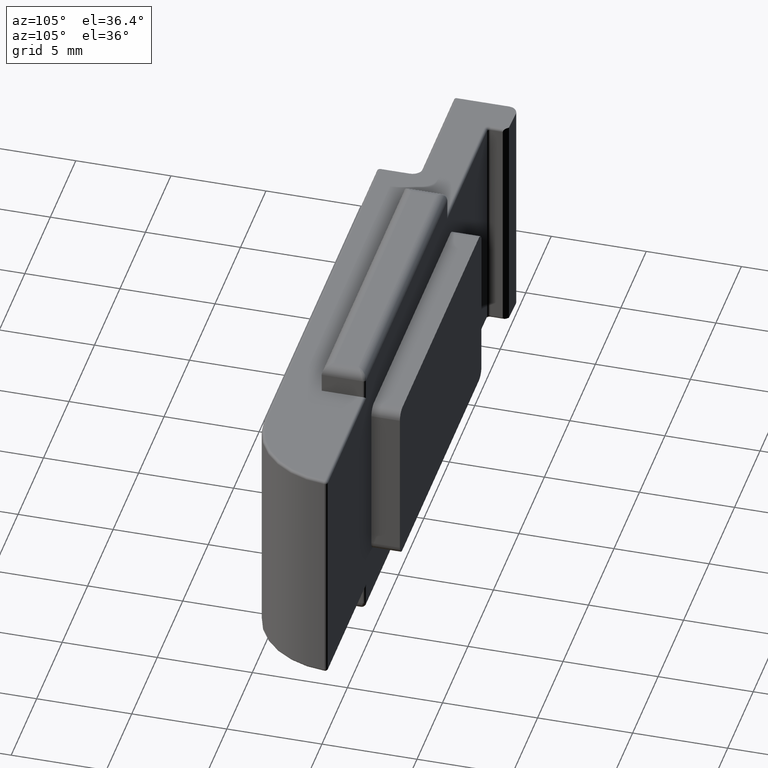
[diagram: clean part render]
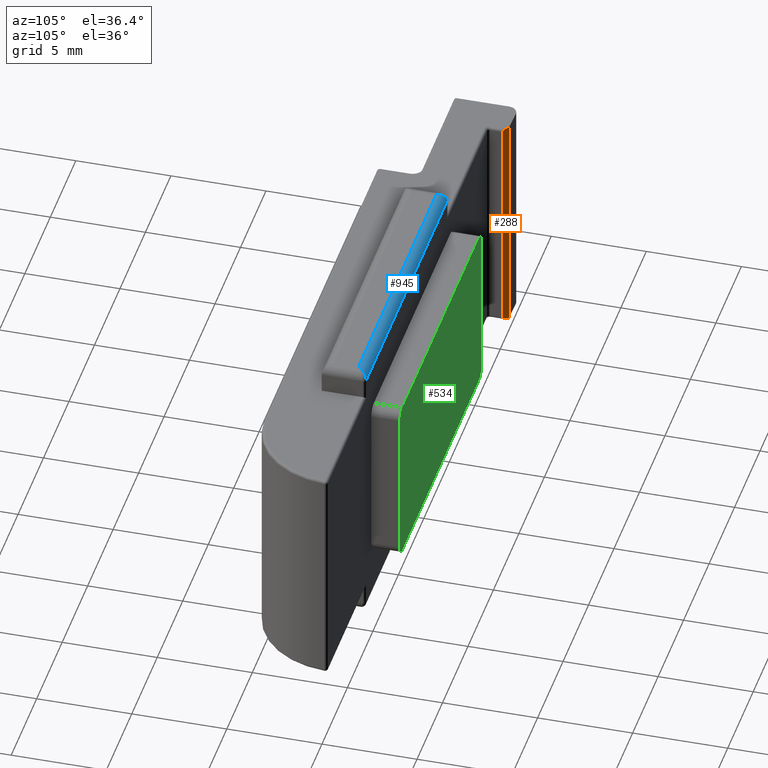
[diagram: same view with three faces highlighted in distinct colors, each labeled with its STEP entity id]
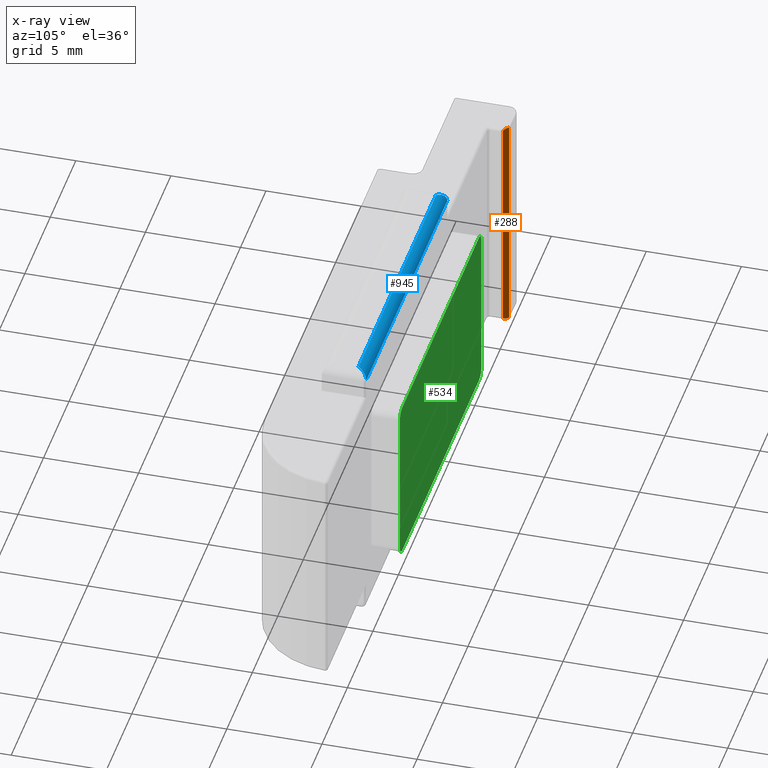
[diagram: x-ray of the same camera — body ghosted, the three highlighted faces saturated]
A machine part, auxiliary view with three faces highlighted in distinct colors.
The next image is the same camera in x-ray (body ghosted, the three faces saturated) — at least one of them is partly hidden behind the body in this view.
Their STEP definitions:

[orange] entity #288 — the highlighted planar face has unit normal (-0.7071, -0.7071, 0).
#36 = CARTESIAN_POINT ( 'NONE',  ( -5.016410256410281043, 0.4564102564102584525, 12.00000000000003197 ) ) ;
#62 = CARTESIAN_POINT ( 'NONE',  ( -4.910000000000018794, 0.3499999999999892086, 12.00000000000003197 ) ) ;
#72 = LINE ( 'NONE', #36, #2153 ) ;
#129 = EDGE_CURVE ( 'NONE', #1792, #1988, #307, .T. ) ;
#144 = ORIENTED_EDGE ( 'NONE', *, *, #166, .F. ) ;
#166 = EDGE_CURVE ( 'NONE', #1955, #985, #72, .T. ) ;
#240 = CARTESIAN_POINT ( 'NONE',  ( -4.822132034355981922, 0.2621320343559522259, 12.00000000000002842 ) ) ;
#288 = ADVANCED_FACE ( 'NONE', ( #433 ), #1279, .F. ) ;
#303 = CARTESIAN_POINT ( 'NONE',  ( -4.760000000000021103, 0.1999999999999918510, 11.85000000000002629 ) ) ;
#307 = LINE ( 'NONE', #1700, #559 ) ;
#325 = EDGE_CURVE ( 'NONE', #1988, #1109, #1623, .T. ) ;
#331 = VECTOR ( 'NONE', #391, 1000.000000000000000 ) ;
#391 = DIRECTION ( 'NONE',  ( 0.000000000000000000, 6.162975822039132834E-33, 1.000000000000000000 ) ) ;
#433 = FACE_OUTER_BOUND ( 'NONE', #760, .T. ) ;
#449 = DIRECTION ( 'NONE',  ( 0.000000000000000000, -6.162975822039132834E-33, -1.000000000000000000 ) ) ;
#511 = LINE ( 'NONE', #1200, #331 ) ;
#545 = CARTESIAN_POINT ( 'NONE',  ( -4.759999999999997122, 0.1999999999999918510, 0.1500000000000042966 ) ) ;
#559 = VECTOR ( 'NONE', #688, 1000.000000000000114 ) ;
#568 = DIRECTION ( 'NONE',  ( 0.000000000000000000, -6.162975822039132834E-33, -1.000000000000000000 ) ) ;
#600 = CARTESIAN_POINT ( 'NONE',  ( -4.760000000000018439, 0.1999999999999872158, 11.93786796564405961 ) ) ;
#634 = ORIENTED_EDGE ( 'NONE', *, *, #1972, .F. ) ;
#636 = ORIENTED_EDGE ( 'NONE', *, *, #129, .F. ) ;
#687 = CARTESIAN_POINT ( 'NONE',  ( -5.016410256410281043, 0.4564102564102584525, 12.00000000000003197 ) ) ;
#688 = DIRECTION ( 'NONE',  ( 0.7071067811865435759, -0.7071067811865514585, -0.000000000000000000 ) ) ;
#703 = ORIENTED_EDGE ( 'NONE', *, *, #325, .F. ) ;
#760 = EDGE_LOOP ( 'NONE', ( #634, #2063, #703, #636, #1074, #144 ) ) ;
#764 = CARTESIAN_POINT ( 'NONE',  ( -4.760000000000021103, 0.1999999999999918510, 11.85000000000002629 ) ) ;
#785 = CARTESIAN_POINT ( 'NONE',  ( -4.822132034355957941, 0.2621320343559523369, 3.914091791828919714E-15 ) ) ;
#884 = VERTEX_POINT ( 'NONE', #303 ) ;
#891 = CARTESIAN_POINT ( 'NONE',  ( -5.016410256410259727, 0.4564102564102584525, 0.000000000000000000 ) ) ;
#924 = CARTESIAN_POINT ( 'NONE',  ( -4.910000000000018794, 0.3499999999999892086, 12.00000000000003197 ) ) ;
#966 = CARTESIAN_POINT ( 'NONE',  ( -4.909999999999993925, 0.3499999999999892086, 0.000000000000000000 ) ) ;
#981 = CARTESIAN_POINT ( 'NONE',  ( -4.759999999999994458, 0.1999999999999872158, 0.06213203435596833385 ) ) ;
#985 = VERTEX_POINT ( 'NONE', #687 ) ;
#1052 = VECTOR ( 'NONE', #568, 1000.000000000000000 ) ;
#1073 = DIRECTION ( 'NONE',  ( -0.7071067811865435759, 0.7071067811865514585, -0.000000000000000000 ) ) ;
#1074 = ORIENTED_EDGE ( 'NONE', *, *, #2006, .F. ) ;
#1109 = VERTEX_POINT ( 'NONE', #545 ) ;
#1129 = CARTESIAN_POINT ( 'NONE',  ( -4.759999999999997122, 0.1999999999999918510, 0.1500000000000042966 ) ) ;
#1200 = CARTESIAN_POINT ( 'NONE',  ( -4.760000000000021103, 0.1999999999999918510, 12.00000000000003197 ) ) ;
#1279 = PLANE ( 'NONE',  #1957 ) ;
#1326 =( BOUNDED_CURVE ( )  B_SPLINE_CURVE ( 3, ( #764, #600, #240, #924 ),
 .UNSPECIFIED., .F., .T. ) 
 B_SPLINE_CURVE_WITH_KNOTS ( ( 4, 4 ),
 ( 3.141592653589793116, 4.712388980384689674 ),
 .UNSPECIFIED. ) 
 CURVE ( )  GEOMETRIC_REPRESENTATION_ITEM ( )  RATIONAL_B_SPLINE_CURVE ( ( 1.000000000000000000, 0.8047378541243649375, 0.8047378541243649375, 1.000000000000000000 ) ) 
 REPRESENTATION_ITEM ( '' )  );
#1451 = DIRECTION ( 'NONE',  ( -0.7071067811865532349, -0.7071067811865417996, 4.357881996052572420E-33 ) ) ;
#1514 = LINE ( 'NONE', #1608, #1052 ) ;
#1608 = CARTESIAN_POINT ( 'NONE',  ( -5.016410256410281043, 0.4564102564102584525, 12.00000000000003197 ) ) ;
#1623 =( BOUNDED_CURVE ( )  B_SPLINE_CURVE ( 3, ( #966, #785, #981, #1129 ),
 .UNSPECIFIED., .F., .T. ) 
 B_SPLINE_CURVE_WITH_KNOTS ( ( 4, 4 ),
 ( 4.712388980384689674, 6.283185307179586232 ),
 .UNSPECIFIED. ) 
 CURVE ( )  GEOMETRIC_REPRESENTATION_ITEM ( )  RATIONAL_B_SPLINE_CURVE ( ( 1.000000000000000000, 0.8047378541243649375, 0.8047378541243649375, 1.000000000000000000 ) ) 
 REPRESENTATION_ITEM ( '' )  );
#1695 = EDGE_CURVE ( 'NONE', #1109, #884, #511, .T. ) ;
#1700 = CARTESIAN_POINT ( 'NONE',  ( -2.280000000000038884, -2.280000000000004245, 0.000000000000000000 ) ) ;
#1791 = CARTESIAN_POINT ( 'NONE',  ( -5.016410256410281043, 0.4564102564102584525, 12.00000000000003197 ) ) ;
#1792 = VERTEX_POINT ( 'NONE', #891 ) ;
#1939 = CARTESIAN_POINT ( 'NONE',  ( -4.909999999999993925, 0.3499999999999892086, 0.000000000000000000 ) ) ;
#1955 = VERTEX_POINT ( 'NONE', #62 ) ;
#1957 = AXIS2_PLACEMENT_3D ( 'NONE', #1791, #1451, #449 ) ;
#1972 = EDGE_CURVE ( 'NONE', #884, #1955, #1326, .T. ) ;
#1988 = VERTEX_POINT ( 'NONE', #1939 ) ;
#2006 = EDGE_CURVE ( 'NONE', #985, #1792, #1514, .T. ) ;
#2063 = ORIENTED_EDGE ( 'NONE', *, *, #1695, .F. ) ;
#2153 = VECTOR ( 'NONE', #1073, 1000.000000000000114 ) ;

[blue] entity #945 — the highlighted cylindrical surface (edge-blend (fillet) strip) has radius 0.5 mm, axis along (1, -0, 0).
#63 = CARTESIAN_POINT ( 'NONE',  ( 18.70000000000003126, -1.099999999999996758, 13.50000000000001243 ) ) ;
#79 = EDGE_LOOP ( 'NONE', ( #1740, #1338, #854, #934 ) ) ;
#111 = CARTESIAN_POINT ( 'NONE',  ( 18.90502525316944826, -0.8071067811865442199, 13.50000000000001243 ) ) ;
#248 = LINE ( 'NONE', #820, #333 ) ;
#277 = LINE ( 'NONE', #373, #1060 ) ;
#314 = VERTEX_POINT ( 'NONE', #63 ) ;
#333 = VECTOR ( 'NONE', #1518, 1000.000000000000000 ) ;
#373 = CARTESIAN_POINT ( 'NONE',  ( 19.20000000000003126, -0.5999999999999963141, 13.00000000000001066 ) ) ;
#474 = EDGE_CURVE ( 'NONE', #314, #1281, #2126, .T. ) ;
#519 = DIRECTION ( 'NONE',  ( 1.000000000000000000, -3.446287897283827838E-18, 0.000000000000000000 ) ) ;
#639 = CARTESIAN_POINT ( 'NONE',  ( 19.05000000000003268, -0.5999999999999967581, 13.29289321881346453 ) ) ;
#800 = VERTEX_POINT ( 'NONE', #1120 ) ;
#817 = CYLINDRICAL_SURFACE ( 'NONE', #1355, 0.5000000000000000000 ) ;
#820 = CARTESIAN_POINT ( 'NONE',  ( 3.000000000000004441, -1.100000000000003642, 13.50000000000003197 ) ) ;
#854 = ORIENTED_EDGE ( 'NONE', *, *, #1137, .F. ) ;
#934 = ORIENTED_EDGE ( 'NONE', *, *, #1584, .T. ) ;
#945 = ADVANCED_FACE ( 'NONE', ( #2185 ), #817, .T. ) ;
#1060 = VECTOR ( 'NONE', #1215, 1000.000000000000000 ) ;
#1061 = EDGE_CURVE ( 'NONE', #314, #1197, #248, .T. ) ;
#1120 = CARTESIAN_POINT ( 'NONE',  ( 3.150000000000003464, -0.6000000000000033085, 13.00000000000003197 ) ) ;
#1137 = EDGE_CURVE ( 'NONE', #800, #1281, #277, .T. ) ;
#1178 = CARTESIAN_POINT ( 'NONE',  ( 3.500000000000003109, -1.100000000000003642, 13.50000000000003197 ) ) ;
#1184 = CARTESIAN_POINT ( 'NONE',  ( 3.294974746830585222, -0.8071067811865512143, 13.50000000000003375 ) ) ;
#1197 = VERTEX_POINT ( 'NONE', #1938 ) ;
#1215 = DIRECTION ( 'NONE',  ( 1.000000000000000000, -3.446287897283827838E-18, -0.000000000000000000 ) ) ;
#1281 = VERTEX_POINT ( 'NONE', #1574 ) ;
#1338 = ORIENTED_EDGE ( 'NONE', *, *, #474, .T. ) ;
#1355 = AXIS2_PLACEMENT_3D ( 'NONE', #1857, #519, #1533 ) ;
#1518 = DIRECTION ( 'NONE',  ( -1.000000000000000000, 3.446287897283827838E-18, 0.000000000000000000 ) ) ;
#1521 = CARTESIAN_POINT ( 'NONE',  ( 3.150000000000001243, -0.6000000000000037526, 13.29289321881348229 ) ) ;
#1533 = DIRECTION ( 'NONE',  ( 3.446287897286636614E-18, 1.000000000000000000, 0.000000000000000000 ) ) ;
#1543 = CARTESIAN_POINT ( 'NONE',  ( 3.150000000000003464, -0.6000000000000033085, 13.00000000000003197 ) ) ;
#1574 = CARTESIAN_POINT ( 'NONE',  ( 19.05000000000003268, -0.5999999999999963141, 13.00000000000001066 ) ) ;
#1584 = EDGE_CURVE ( 'NONE', #800, #1197, #2190, .T. ) ;
#1641 = CARTESIAN_POINT ( 'NONE',  ( 18.70000000000003126, -1.099999999999996758, 13.50000000000001243 ) ) ;
#1740 = ORIENTED_EDGE ( 'NONE', *, *, #1061, .F. ) ;
#1813 = CARTESIAN_POINT ( 'NONE',  ( 19.05000000000003268, -0.5999999999999963141, 13.00000000000001066 ) ) ;
#1857 = CARTESIAN_POINT ( 'NONE',  ( -2.428612866367529932E-14, -1.100000000000003642, 13.00000000000003197 ) ) ;
#1938 = CARTESIAN_POINT ( 'NONE',  ( 3.500000000000003109, -1.100000000000003642, 13.50000000000003197 ) ) ;
#2126 =( BOUNDED_CURVE ( )  B_SPLINE_CURVE ( 3, ( #1641, #111, #639, #1813 ),
 .UNSPECIFIED., .F., .F. ) 
 B_SPLINE_CURVE_WITH_KNOTS ( ( 4, 4 ),
 ( 4.712388980384689674, 6.283185307179586232 ),
 .UNSPECIFIED. ) 
 CURVE ( )  GEOMETRIC_REPRESENTATION_ITEM ( )  RATIONAL_B_SPLINE_CURVE ( ( 1.000000000000000000, 0.8047378541243649375, 0.8047378541243649375, 1.000000000000000000 ) ) 
 REPRESENTATION_ITEM ( '' )  );
#2185 = FACE_OUTER_BOUND ( 'NONE', #79, .T. ) ;
#2190 =( BOUNDED_CURVE ( )  B_SPLINE_CURVE ( 3, ( #1543, #1521, #1184, #1178 ),
 .UNSPECIFIED., .F., .T. ) 
 B_SPLINE_CURVE_WITH_KNOTS ( ( 4, 4 ),
 ( 3.141592653589793116, 4.712388980384689674 ),
 .UNSPECIFIED. ) 
 CURVE ( )  GEOMETRIC_REPRESENTATION_ITEM ( )  RATIONAL_B_SPLINE_CURVE ( ( 1.000000000000000000, 0.8047378541243649375, 0.8047378541243649375, 1.000000000000000000 ) ) 
 REPRESENTATION_ITEM ( '' )  );

[green] entity #534 — the highlighted planar face has unit normal (0, 1, 0).
#18 = ORIENTED_EDGE ( 'NONE', *, *, #218, .T. ) ;
#97 = CARTESIAN_POINT ( 'NONE',  ( 17.54741302385688684, 0.8999999999999980238, 1.500000000000001332 ) ) ;
#214 = CARTESIAN_POINT ( 'NONE',  ( 2.547413023856807346, 0.8999999999999980238, 10.00000000000000888 ) ) ;
#218 = EDGE_CURVE ( 'NONE', #777, #702, #1322, .T. ) ;
#231 = CARTESIAN_POINT ( 'NONE',  ( -2.081668171172168513E-14, 0.8999999999999980238, 10.50000000000000888 ) ) ;
#236 = DIRECTION ( 'NONE',  ( 0.000000000000000000, -6.162975822039132834E-33, -1.000000000000000000 ) ) ;
#242 = ORIENTED_EDGE ( 'NONE', *, *, #2111, .T. ) ;
#280 = VECTOR ( 'NONE', #551, 1000.000000000000000 ) ;
#294 = EDGE_CURVE ( 'NONE', #858, #502, #868, .T. ) ;
#302 = AXIS2_PLACEMENT_3D ( 'NONE', #2187, #1669, #1010 ) ;
#362 = CARTESIAN_POINT ( 'NONE',  ( 2.047413023856830883, 0.8999999999999980238, 0.000000000000000000 ) ) ;
#394 = CARTESIAN_POINT ( 'NONE',  ( 2.547413023856807346, 0.8999999999999980238, 10.50000000000000888 ) ) ;
#406 = CARTESIAN_POINT ( 'NONE',  ( 18.04741302385686197, 0.8999999999999980238, 10.00000000000000533 ) ) ;
#502 = VERTEX_POINT ( 'NONE', #2045 ) ;
#534 = ADVANCED_FACE ( 'NONE', ( #544 ), #839, .T. ) ;
#544 = FACE_OUTER_BOUND ( 'NONE', #1146, .T. ) ;
#548 = VERTEX_POINT ( 'NONE', #1863 ) ;
#551 = DIRECTION ( 'NONE',  ( 1.445602896647338670E-16, 6.162975822039132834E-33, 1.000000000000000000 ) ) ;
#562 = CIRCLE ( 'NONE', #1115, 0.5000000000000017764 ) ;
#587 = CARTESIAN_POINT ( 'NONE',  ( 3.469446951953614189E-15, 0.8999999999999980238, 1.500000000000008216 ) ) ;
#610 = ORIENTED_EDGE ( 'NONE', *, *, #1830, .T. ) ;
#618 = CIRCLE ( 'NONE', #2159, 0.5000000000000017764 ) ;
#638 = VERTEX_POINT ( 'NONE', #1392 ) ;
#674 = EDGE_CURVE ( 'NONE', #548, #638, #1981, .T. ) ;
#702 = VERTEX_POINT ( 'NONE', #1536 ) ;
#740 = ORIENTED_EDGE ( 'NONE', *, *, #674, .T. ) ;
#777 = VERTEX_POINT ( 'NONE', #394 ) ;
#819 = DIRECTION ( 'NONE',  ( 4.068560582467007589E-18, 1.000000000000000000, 0.000000000000000000 ) ) ;
#839 = PLANE ( 'NONE',  #302 ) ;
#858 = VERTEX_POINT ( 'NONE', #97 ) ;
#868 = LINE ( 'NONE', #587, #1273 ) ;
#910 = AXIS2_PLACEMENT_3D ( 'NONE', #1162, #819, #1675 ) ;
#972 = VECTOR ( 'NONE', #1925, 1000.000000000000000 ) ;
#1010 = DIRECTION ( 'NONE',  ( -1.000000000000000000, 4.068560582466971381E-18, 0.000000000000000000 ) ) ;
#1115 = AXIS2_PLACEMENT_3D ( 'NONE', #1403, #1923, #2082 ) ;
#1146 = EDGE_LOOP ( 'NONE', ( #18, #242, #610, #1715, #1716, #1371, #740, #2145 ) ) ;
#1149 = EDGE_CURVE ( 'NONE', #638, #777, #618, .T. ) ;
#1162 = CARTESIAN_POINT ( 'NONE',  ( 17.54741302385686197, 0.8999999999999980238, 10.00000000000000533 ) ) ;
#1207 = CIRCLE ( 'NONE', #910, 0.5000000000000004441 ) ;
#1270 = EDGE_CURVE ( 'NONE', #502, #548, #562, .T. ) ;
#1273 = VECTOR ( 'NONE', #1624, 1000.000000000000000 ) ;
#1322 = LINE ( 'NONE', #231, #972 ) ;
#1371 = ORIENTED_EDGE ( 'NONE', *, *, #1270, .T. ) ;
#1376 = VECTOR ( 'NONE', #236, 1000.000000000000000 ) ;
#1392 = CARTESIAN_POINT ( 'NONE',  ( 2.047413023856806902, 0.8999999999999980238, 10.00000000000000888 ) ) ;
#1395 = DIRECTION ( 'NONE',  ( -1.000000000000000000, 0.000000000000000000, 0.000000000000000000 ) ) ;
#1403 = CARTESIAN_POINT ( 'NONE',  ( 2.547413023856831771, 0.8999999999999980238, 2.000000000000001776 ) ) ;
#1530 = DIRECTION ( 'NONE',  ( 4.068560582467007589E-18, 1.000000000000000000, 0.000000000000000000 ) ) ;
#1536 = CARTESIAN_POINT ( 'NONE',  ( 17.54741302385686197, 0.8999999999999980238, 10.50000000000000533 ) ) ;
#1560 = DIRECTION ( 'NONE',  ( 4.068560582467007589E-18, 1.000000000000000000, 0.000000000000000000 ) ) ;
#1569 = EDGE_CURVE ( 'NONE', #1810, #858, #1914, .T. ) ;
#1624 = DIRECTION ( 'NONE',  ( -1.000000000000000000, 4.068560582466965989E-18, 2.168404344971007635E-16 ) ) ;
#1642 = LINE ( 'NONE', #1757, #1376 ) ;
#1669 = DIRECTION ( 'NONE',  ( 4.068560582466971381E-18, 1.000000000000000000, 0.000000000000000000 ) ) ;
#1675 = DIRECTION ( 'NONE',  ( -1.000000000000000000, 0.000000000000000000, 0.000000000000000000 ) ) ;
#1689 = CARTESIAN_POINT ( 'NONE',  ( 17.54741302385688684, 0.8999999999999980238, 2.000000000000001776 ) ) ;
#1715 = ORIENTED_EDGE ( 'NONE', *, *, #1569, .T. ) ;
#1716 = ORIENTED_EDGE ( 'NONE', *, *, #294, .T. ) ;
#1757 = CARTESIAN_POINT ( 'NONE',  ( 18.04741302385688684, 0.8999999999999980238, 0.000000000000000000 ) ) ;
#1776 = CARTESIAN_POINT ( 'NONE',  ( 18.04741302385688684, 0.8999999999999980238, 2.000000000000001776 ) ) ;
#1810 = VERTEX_POINT ( 'NONE', #1776 ) ;
#1830 = EDGE_CURVE ( 'NONE', #2023, #1810, #1642, .T. ) ;
#1862 = DIRECTION ( 'NONE',  ( -1.000000000000000000, 0.000000000000000000, 0.000000000000000000 ) ) ;
#1863 = CARTESIAN_POINT ( 'NONE',  ( 2.047413023856830883, 0.8999999999999980238, 2.000000000000001776 ) ) ;
#1914 = CIRCLE ( 'NONE', #2035, 0.5000000000000004441 ) ;
#1923 = DIRECTION ( 'NONE',  ( 4.068560582467007589E-18, 1.000000000000000000, 0.000000000000000000 ) ) ;
#1925 = DIRECTION ( 'NONE',  ( 1.000000000000000000, -4.068560582466971381E-18, 0.000000000000000000 ) ) ;
#1981 = LINE ( 'NONE', #362, #280 ) ;
#2023 = VERTEX_POINT ( 'NONE', #406 ) ;
#2035 = AXIS2_PLACEMENT_3D ( 'NONE', #1689, #1530, #1862 ) ;
#2045 = CARTESIAN_POINT ( 'NONE',  ( 2.547413023856831771, 0.8999999999999980238, 1.500000000000001332 ) ) ;
#2082 = DIRECTION ( 'NONE',  ( -1.000000000000000000, 0.000000000000000000, 0.000000000000000000 ) ) ;
#2111 = EDGE_CURVE ( 'NONE', #702, #2023, #1207, .T. ) ;
#2145 = ORIENTED_EDGE ( 'NONE', *, *, #1149, .T. ) ;
#2159 = AXIS2_PLACEMENT_3D ( 'NONE', #214, #1560, #1395 ) ;
#2187 = CARTESIAN_POINT ( 'NONE',  ( 3.469446951953614189E-15, 0.8999999999999980238, 0.000000000000000000 ) ) ;